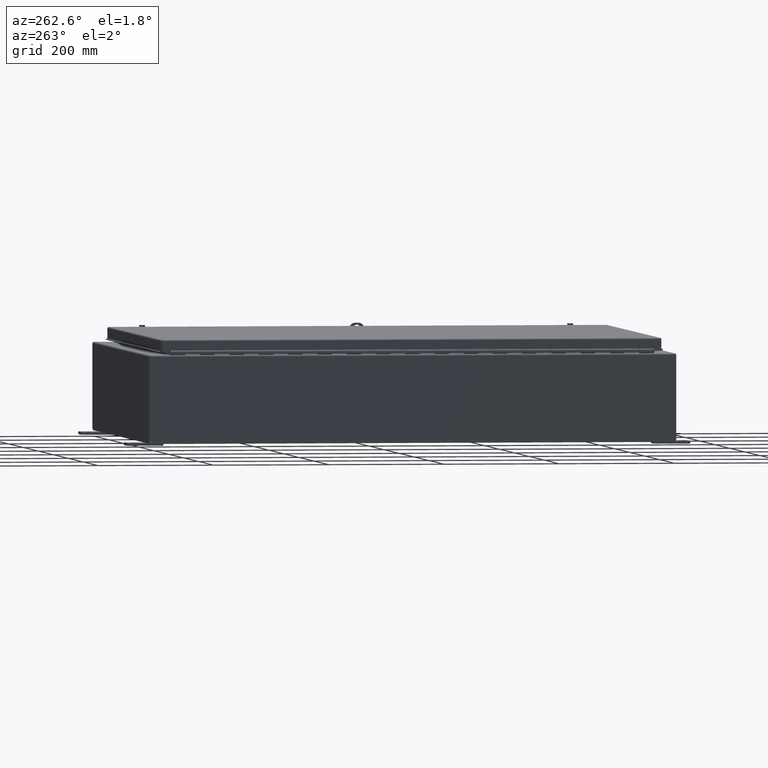
[diagram: clean part render]
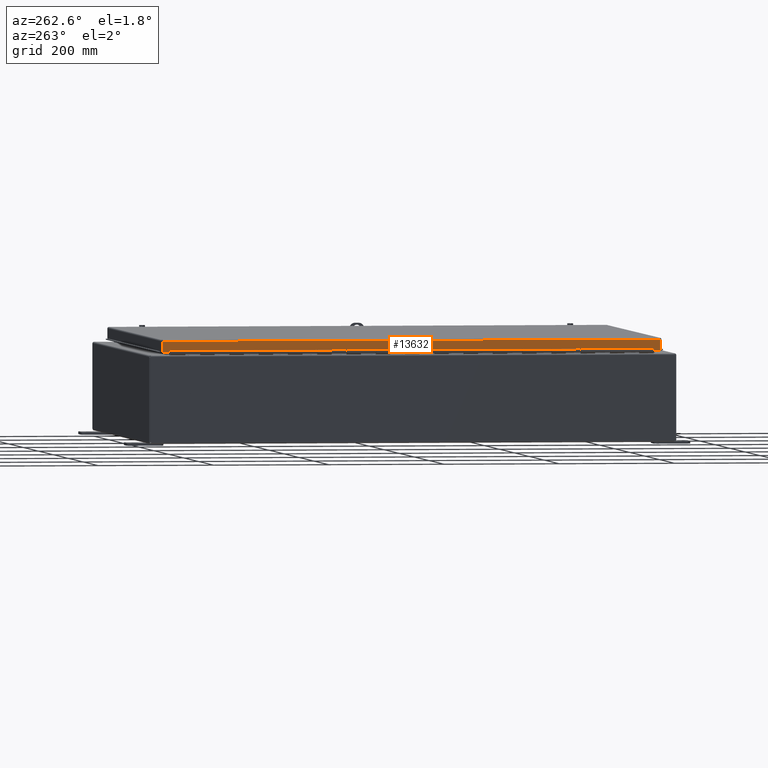
[diagram: same view with one face highlighted and labeled with its STEP entity id]
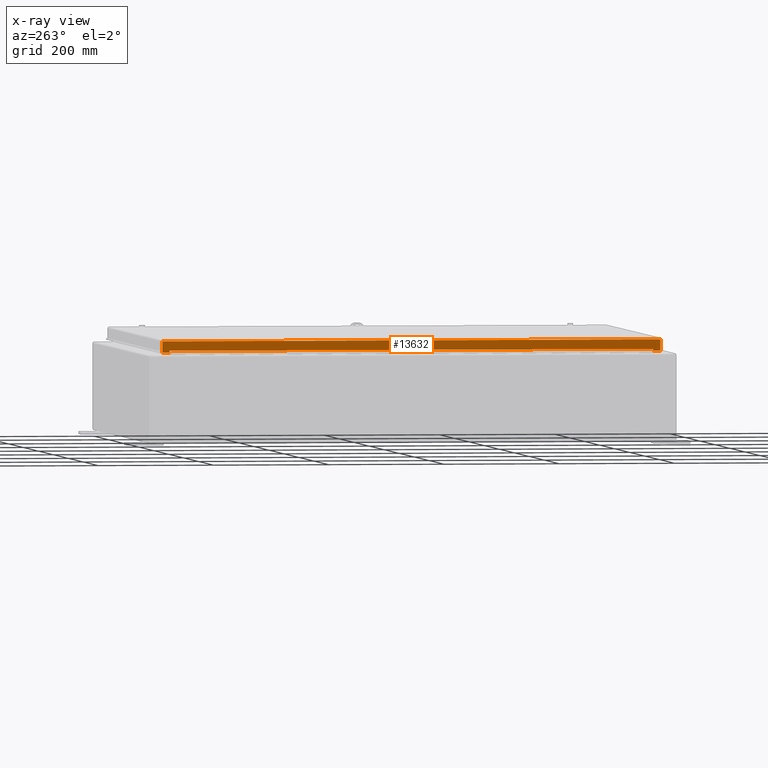
[diagram: x-ray of the same camera — body ghosted, the highlighted face saturated]
A machine part, auxiliary view. The second image highlights one B-rep face of the part: STEP entity #13632.
The next image is the same camera in x-ray: the body ghosted, the highlighted face saturated — about 0% of this face is hidden behind the body in this view.
In plain terms, the highlighted planar face has unit normal (1, 0, 0).
Its self-contained STEP definition (entity closure, byte-faithful):
#10845=CARTESIAN_POINT('',(-14.187500000000027,16.515625000000011,0.749999999999995));
#10846=VERTEX_POINT('',#10845);
#10853=CARTESIAN_POINT('',(-14.187500000000025,-16.515624999999989,0.74999999999997));
#10854=VERTEX_POINT('',#10853);
#10855=CARTESIAN_POINT('',(-14.187500000000021,-16.515624999999993,0.74999999999997));
#10856=DIRECTION('',(0.0,1.0,0.0));
#10857=VECTOR('',#10856,33.03125);
#10858=LINE('',#10855,#10857);
#10859=EDGE_CURVE('',#10854,#10846,#10858,.T.);
#10884=CARTESIAN_POINT('',(-14.187500000000027,-16.515624999999989,0.874999999999972));
#10885=VERTEX_POINT('',#10884);
#10886=CARTESIAN_POINT('',(-14.187500000000025,-16.515624999999989,0.874999999999972));
#10887=DIRECTION('',(0.0,0.0,-1.0));
#10888=VECTOR('',#10887,0.125000000000003);
#10889=LINE('',#10886,#10888);
#10890=EDGE_CURVE('',#10885,#10854,#10889,.T.);
#10914=CARTESIAN_POINT('',(-14.187500000000032,16.515625000000011,0.874999999999993));
#10915=VERTEX_POINT('',#10914);
#10922=CARTESIAN_POINT('',(-14.187500000000025,16.515625000000011,0.749999999999995));
#10923=DIRECTION('',(0.0,0.0,1.0));
#10924=VECTOR('',#10923,0.124999999999998);
#10925=LINE('',#10922,#10924);
#10926=EDGE_CURVE('',#10846,#10915,#10925,.T.);
#10987=CARTESIAN_POINT('',(-14.187500000000025,-17.008701456544006,0.874999999999993));
#10988=VERTEX_POINT('',#10987);
#10989=CARTESIAN_POINT('',(-14.187500000000025,-17.008701456544003,0.874999999999993));
#10990=DIRECTION('',(0.0,1.0,0.0));
#10991=VECTOR('',#10990,0.493076456544003);
#10992=LINE('',#10989,#10991);
#10993=EDGE_CURVE('',#10988,#10885,#10992,.T.);
#12965=CARTESIAN_POINT('',(-14.187499999999996,-17.008701456543957,0.105249999999966));
#12966=VERTEX_POINT('',#12965);
#13215=CARTESIAN_POINT('',(-14.187500000000002,-17.008701456543957,0.105249999999982));
#13216=DIRECTION('',(0.0,0.0,1.0));
#13217=VECTOR('',#13216,0.769750000000012);
#13218=LINE('',#13215,#13217);
#13219=EDGE_CURVE('',#12966,#10988,#13218,.T.);
#13489=CARTESIAN_POINT('',(-14.18750000000003,17.00870145654401,0.874999999999999));
#13490=VERTEX_POINT('',#13489);
#13497=CARTESIAN_POINT('',(-14.187500000000025,16.515625000000014,0.874999999999993));
#13498=DIRECTION('',(0.0,1.0,0.0));
#13499=VECTOR('',#13498,0.493076456543989);
#13500=LINE('',#13497,#13499);
#13501=EDGE_CURVE('',#10915,#13490,#13500,.T.);
#13528=CARTESIAN_POINT('',(-14.187500000000002,17.008701456543957,0.105250000000004));
#13529=VERTEX_POINT('',#13528);
#13536=CARTESIAN_POINT('',(-14.18750000000003,17.00870145654401,0.874999999999999));
#13537=DIRECTION('',(0.0,0.0,-1.0));
#13538=VECTOR('',#13537,0.769750000000009);
#13539=LINE('',#13536,#13538);
#13540=EDGE_CURVE('',#13490,#13529,#13539,.T.);
#13598=CARTESIAN_POINT('',(-14.187500000000005,17.008701456543957,0.105249999999993));
#13599=DIRECTION('',(0.0,-1.0,0.0));
#13600=VECTOR('',#13599,34.017402913087921);
#13601=LINE('',#13598,#13600);
#13602=EDGE_CURVE('',#13529,#12966,#13601,.T.);
#13617=CARTESIAN_POINT('',(-14.187500000000012,5.396255E-017,0.440008743193604));
#13618=DIRECTION('',(1.0,0.0,0.0));
#13619=DIRECTION('',(0.0,0.0,-1.0));
#13620=AXIS2_PLACEMENT_3D('',#13617,#13618,#13619);
#13621=PLANE('',#13620);
#13622=ORIENTED_EDGE('',*,*,#10926,.T.);
#13623=ORIENTED_EDGE('',*,*,#13501,.T.);
#13624=ORIENTED_EDGE('',*,*,#13540,.T.);
#13625=ORIENTED_EDGE('',*,*,#13602,.T.);
#13626=ORIENTED_EDGE('',*,*,#13219,.T.);
#13627=ORIENTED_EDGE('',*,*,#10993,.T.);
#13628=ORIENTED_EDGE('',*,*,#10890,.T.);
#13629=ORIENTED_EDGE('',*,*,#10859,.T.);
#13630=EDGE_LOOP('',(#13622,#13623,#13624,#13625,#13626,#13627,#13628,#13629));
#13631=FACE_OUTER_BOUND('',#13630,.T.);
#13632=ADVANCED_FACE('',(#13631),#13621,.F.);